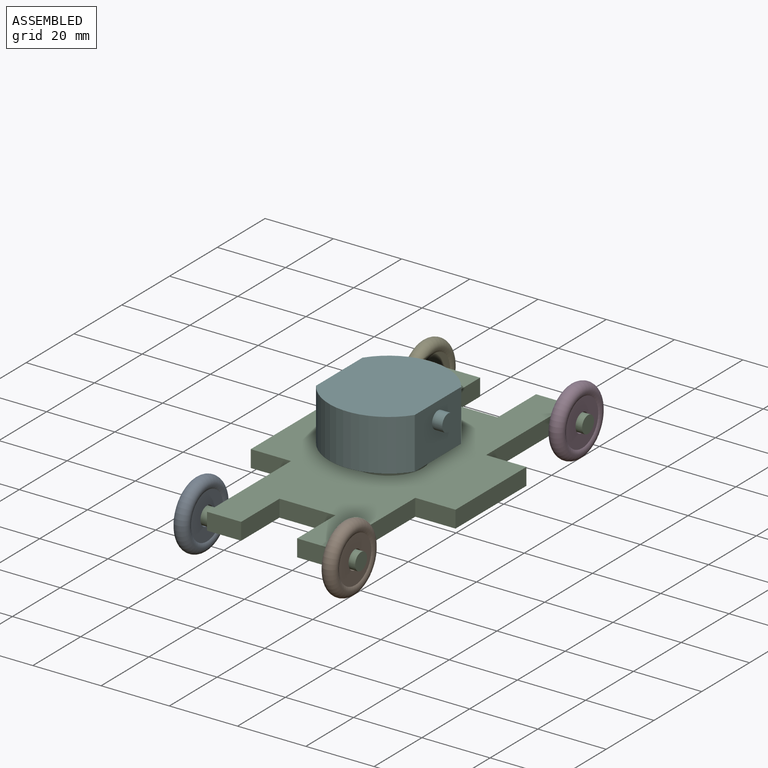
[diagram: assembled view]
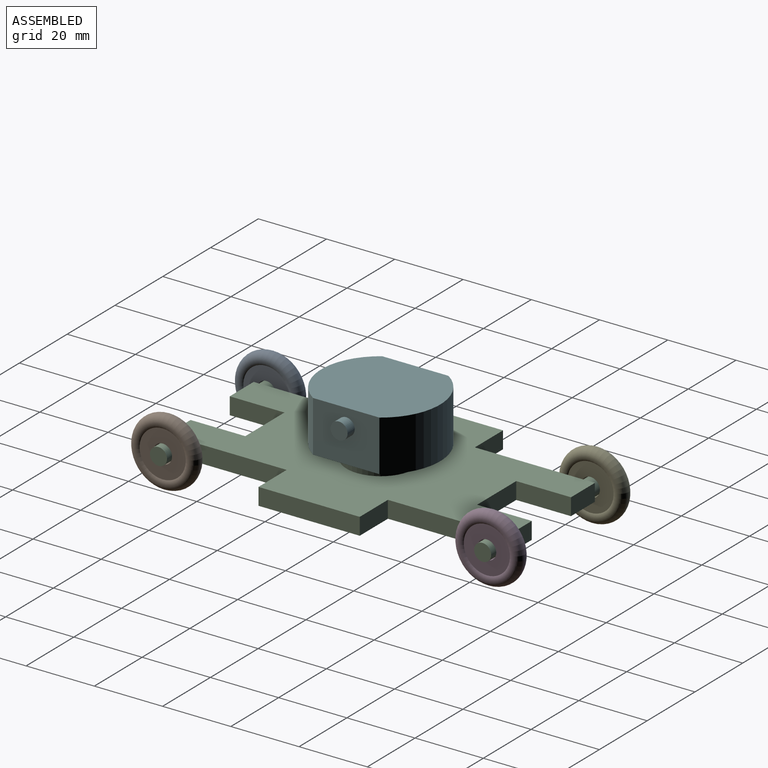
[diagram: assembled view, second angle]
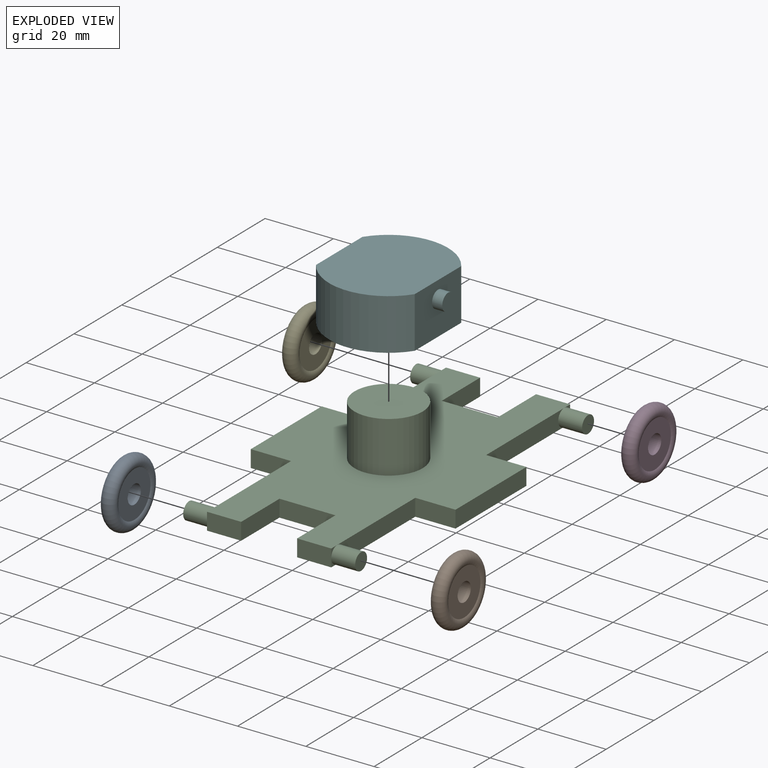
[diagram: exploded view]
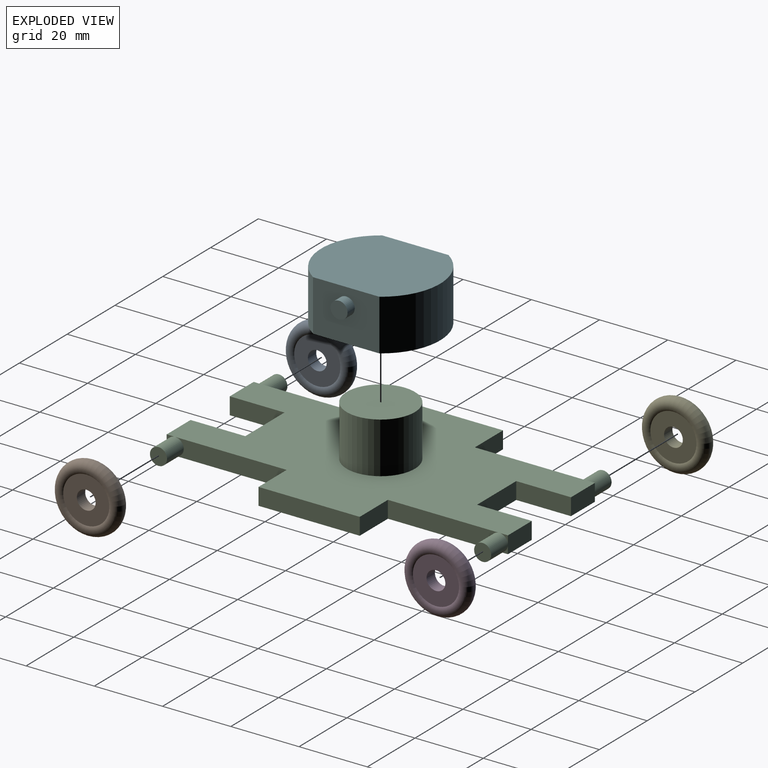
[diagram: exploded view, second angle]
ASSEMBLY  parts=6 mates=5
PART A: 4 faces, bbox 3.5x21.6x21.6 mm
  f0: torus R=7.91mm, axis (-1,0,0), area 491.8mm2, adj f1,f2
  f1: plane 13.53x13.53mm, normal (1,0,0), area 119.9mm2, adj f0,f3
  f2: plane 13.53x13.53mm, normal (-1,0,0), area 119.9mm2, adj f0,f3
  f3: cylinder r=2.75mm len=5.5mm, axis (1,0,0), area 60.1mm2, adj f1,f2
PART B: same geometry as A
PART C: 40 faces, bbox 60x100x20 mm
  f0: plane 2.5x2.5mm, normal (-1,0,0), area 1.3mm2, adj f8,f29,f36
  f1: plane 2.5x2.5mm, normal (-1,0,0), area 1.3mm2, adj f8,f28,f36
  f2: plane 32.67x5mm, normal (-1,0,0), area 153.5mm2, adj f12,f28,f29,f35
  f3: plane 2.5x2.5mm, normal (-1,0,0), area 1.3mm2, adj f14,f28,f35
  f4: plane 32.67x5mm, normal (1,0,0), area 153.5mm2, adj f20,f28,f29,f32
  f5: plane 2.5x2.5mm, normal (1,0,0), area 1.3mm2, adj f18,f28,f32
  f6: plane 2.5x2.5mm, normal (1,0,0), area 1.3mm2, adj f24,f29,f30
  f7: plane 2.5x2.5mm, normal (1,0,0), area 1.3mm2, adj f24,f28,f30
  f8: plane 10x5mm, normal (0,1,0), area 50mm2, adj f0,f1,f27,f28,f29
  f9: plane 32.67x5mm, normal (-1,0,0), area 153.5mm2, adj f10,f28,f29,f36
  f10: plane 11.8x5mm, normal (0,1,0), area 59mm2, adj f9,f11,f28,f29
  f11: plane 29.67x5mm, normal (-1,0,0), area 148.3mm2, adj f10,f12,f28,f29
  f12: plane 11.8x5mm, normal (0,-1,0), area 59mm2, adj f2,f11,f28,f29
  f13: plane 2.5x2.5mm, normal (-1,0,0), area 1.3mm2, adj f14,f29,f35
  f14: plane 10x5mm, normal (0,-1,0), area 50mm2, adj f3,f13,f15,f28,f29
  f15: plane 16.04x5mm, normal (1,0,0), area 80.2mm2, adj f14,f16,f28,f29
  f16: plane 16.4x5mm, normal (0,-1,0), area 82mm2, adj f15,f17,f28,f29
  f17: plane 16.04x5mm, normal (-1,0,0), area 80.2mm2, adj f16,f18,f28,f29
  f18: plane 10x5mm, normal (0,-1,0), area 50mm2, adj f5,f17,f19,f28,f29
  f19: plane 2.5x2.5mm, normal (1,0,0), area 1.3mm2, adj f18,f29,f32
  f20: plane 11.8x5mm, normal (0,-1,0), area 59mm2, adj f4,f21,f28,f29
  f21: plane 29.67x5mm, normal (1,0,0), area 148.3mm2, adj f20,f22,f28,f29
  f22: plane 11.8x5mm, normal (0,1,0), area 59mm2, adj f21,f23,f28,f29
  f23: plane 32.67x5mm, normal (1,0,0), area 153.5mm2, adj f22,f28,f29,f30
  f24: plane 10x5mm, normal (0,1,0), area 50mm2, adj f6,f7,f25,f28,f29
  f25: plane 16.04x5mm, normal (-1,0,0), area 80.2mm2, adj f24,f26,f28,f29
  f26: plane 16.4x5mm, normal (0,1,0), area 82mm2, adj f25,f27,f28,f29
  f27: plane 16.04x5mm, normal (1,0,0), area 80.2mm2, adj f8,f26,f28,f29
  f28: plane 100x60mm, normal (0,0,1), area 3499.7mm2, adj f1,f2,f3,f4,f5,f7,f8,f9
  f29: plane 100x60mm, normal (0,0,-1), area 3813.8mm2, adj f0,f2,f4,f6,f8,f9,f10,f11
  f30: cylinder r=2.5mm len=7mm, axis (-1,0,0), area 110mm2, adj f6,f7,f23,f31
  f31: plane 5x5mm, normal (1,0,0), area 19.6mm2, adj f30
  f32: cylinder r=2.5mm len=7mm, axis (-1,0,0), area 110mm2, adj f4,f5,f19,f33
  f33: plane 5x5mm, normal (1,0,0), area 19.6mm2, adj f32
  f34: plane 5x5mm, normal (-1,0,0), area 19.6mm2, adj f35
  f35: cylinder r=2.5mm len=7mm, axis (1,0,0), area 110mm2, adj f2,f3,f13,f34
  f36: cylinder r=2.5mm len=7mm, axis (1,0,0), area 110mm2, adj f0,f1,f9,f37
  f37: plane 5x5mm, normal (-1,0,0), area 19.6mm2, adj f36
  f38: cylinder r=10mm len=20mm, axis (0,0,-1), area 942.5mm2, adj f28,f39
  f39: plane 20x20mm, normal (0,0,1), area 314.2mm2, adj f38
PART D: same geometry as A
PART E: same geometry as A
PART F: 12 faces, bbox 35x34.9x15 mm
  f0: cylinder r=10.5mm len=21mm, axis (0,0,-1), area 725.7mm2, adj f6,f7
  f1: cylinder r=17.44mm len=28.95mm, axis (0,0,-1), area 512.3mm2, adj f2,f4,f5,f6
  f2: plane 19.46x15mm, normal (1,0,0), area 272.2mm2, adj f1,f3,f5,f6,f8
  f3: cylinder r=17.44mm len=28.95mm, axis (0,0,-1), area 512.3mm2, adj f2,f4,f5,f6
  f4: plane 19.46x15mm, normal (-1,0,0), area 272.2mm2, adj f1,f3,f5,f6,f10
  f5: plane 34.88x28.95mm, normal (0,0,1), area 877.3mm2, adj f1,f2,f3,f4
  f6: plane 34.88x28.95mm, normal (0,0,-1), area 530.9mm2, adj f0,f1,f2,f3,f4
  f7: plane 21x21mm, normal (0,0,-1), area 346.4mm2, adj f0
  f8: cylinder r=2.5mm len=5mm, axis (-1,0,0), area 47.1mm2, adj f2,f9
  f9: plane 5x5mm, normal (1,0,0), area 19.6mm2, adj f8
  f10: cylinder r=2.5mm len=5mm, axis (1,0,0), area 47.1mm2, adj f4,f11
  f11: plane 5x5mm, normal (-1,0,0), area 19.6mm2, adj f10
PLACE A t=(-21.51,-47.43,-0.03)mm
PLACE B t=(21.89,-47.43,-0.03)mm
PLACE C t=(0.19,0.07,-2.53)mm fixed
PLACE D t=(21.89,47.57,-0.03)mm
PLACE E t=(-21.51,47.57,-0.03)mm
PLACE F t=(0.19,0.07,6.47)mm
MATE revolute B.f3 <-> C.f32  axis (1,0,0) through (21.89,-47.43,-0.03)mm
MATE revolute A.f0 <-> C.f32  axis (-1,0,0) through (-21.51,-47.43,-0.03)mm
MATE revolute E.f3 <-> C.f30  axis (1,0,0) through (-21.51,47.57,-0.03)mm
MATE revolute D.f0 <-> C.f30  axis (-1,0,0) through (21.89,47.57,-0.03)mm
MATE revolute F.f0 <-> C.f38  axis (0,0,-1) through (0.19,0.07,17.47)mm
